MODEL slx_7594f1d966cf
KIND library
CONFIG AbsTol = auto
CONFIG EnableMultiTasking = off
CONFIG FixedStep = auto
CONFIG MaxStep = auto
CONFIG MinStep = auto
CONFIG RelTol = 1e-3
CONFIG SampleTimeConstraint = Unconstrained
CONFIG Solver = VariableStepAuto
CONFIG SolverName = VariableStepAuto
CONFIG StartTime = 0.0
CONFIG StopTime = 10.0
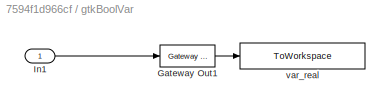
BLOCK [SubSystem] gtkBoolVar
  Ports = [1]
  RequestExecContextInheritance = off
  Variant = off
BLOCK [Reference] gtkBoolVar/Gateway Out1  REF=xbsIndex_r4/Gateway Out
  Ports = [1, 1]
  SourceBlock = xbsIndex_r4/Gateway Out
  SourceType = Xilinx Gateway Out Block
BLOCK [Inport] gtkBoolVar/In1
  IconDisplay = Port number
BLOCK [ToWorkspace] gtkBoolVar/var_real
  MaxDataPoints = inf
  Ports = [1]
  SampleTime = -1
  SaveFormat = Structure With Time
  VariableName = gtk_gtkWave__gtkBoolVar_bool
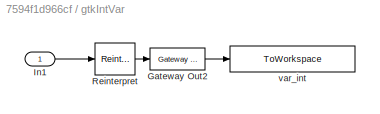
BLOCK [SubSystem] gtkIntVar
  Ports = [1]
  RequestExecContextInheritance = off
  Variant = off
BLOCK [Reference] gtkIntVar/Gateway Out2  REF=xbsIndex_r4/Gateway Out
  Ports = [1, 1]
  SourceBlock = xbsIndex_r4/Gateway Out
  SourceType = Xilinx Gateway Out Block
BLOCK [Inport] gtkIntVar/In1
  IconDisplay = Port number
BLOCK [Reference] gtkIntVar/Reinterpret  REF=xbsIndex_r4/Reinterpret
  Ports = [1, 1]
  SourceBlock = xbsIndex_r4/Reinterpret
  SourceType = Xilinx Type Reinterpreter Block
BLOCK [ToWorkspace] gtkIntVar/var_int
  MaxDataPoints = inf
  Ports = [1]
  SampleTime = -1
  SaveFormat = Structure With Time
  VariableName = gtk_gtkWave__gtkIntVar_int32
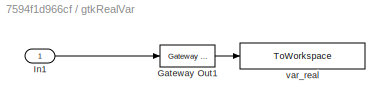
BLOCK [SubSystem] gtkRealVar
  Ports = [1]
  RequestExecContextInheritance = off
  Variant = off
BLOCK [Reference] gtkRealVar/Gateway Out1  REF=xbsIndex_r4/Gateway Out
  Ports = [1, 1]
  SourceBlock = xbsIndex_r4/Gateway Out
  SourceType = Xilinx Gateway Out Block
BLOCK [Inport] gtkRealVar/In1
  IconDisplay = Port number
BLOCK [ToWorkspace] gtkRealVar/var_real
  MaxDataPoints = inf
  Ports = [1]
  SampleTime = -1
  SaveFormat = Structure With Time
  VariableName = gtk_gtkWave__gtkRealVar_real
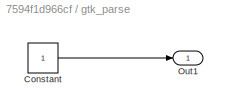
BLOCK [SubSystem] gtk_parse
  OpenFcn = gtk_parse()
  Ports = [0, 1]
  RequestExecContextInheritance = off
  StartFcn = gtkStartFcn()
  Variant = off
BLOCK [Constant] gtk_parse/Constant
BLOCK [Outport] gtk_parse/Out1
  IconDisplay = Port number
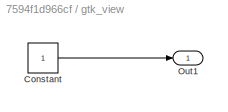
BLOCK [SubSystem] gtk_view
  OpenFcn = gtk_view()
  Ports = [0, 1]
  RequestExecContextInheritance = off
  Variant = off
BLOCK [Constant] gtk_view/Constant
BLOCK [Outport] gtk_view/Out1
  IconDisplay = Port number
ANNOTATION (root): gtkWave Capture Blockset Glenn Jones 2008.03.19 Connect the Bool, Int, or Real blocks to Xilinx Fix signals to capture the simulation data. The signal will show up in gtkWave with the same name as the Bool, Int, or Real block. Thus the default Bool variable name would be 'gtkBoolVar'. Double clicking the 'gtk_parse' block will parse the captured data and create a VCD file and open it in gtkWave fo...<+623ch>
LINE gtk_parse/Constant:1 -> gtk_parse/Out1:1
LINE gtk_view/Constant:1 -> gtk_view/Out1:1
